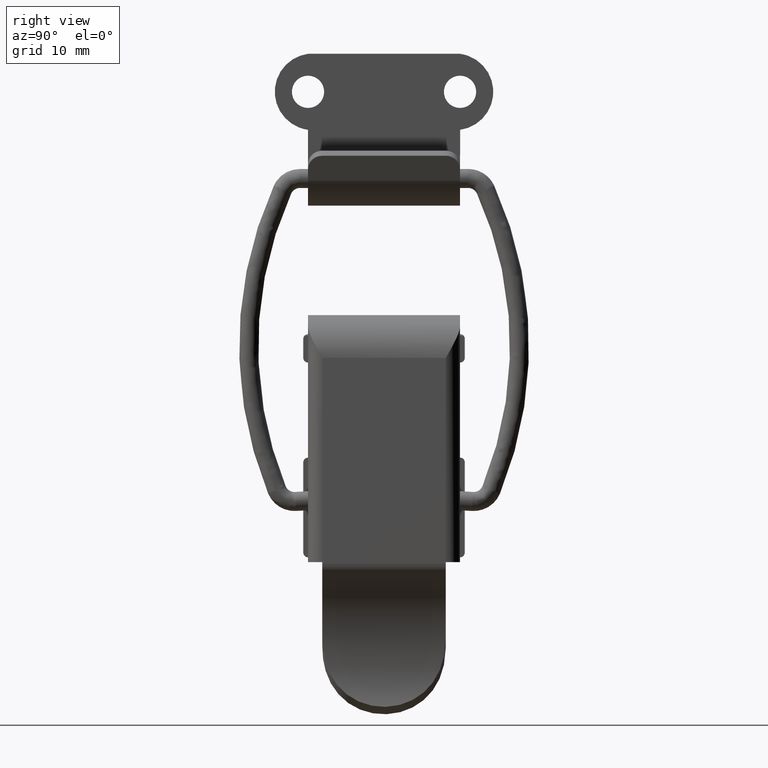
[diagram: clean part render]
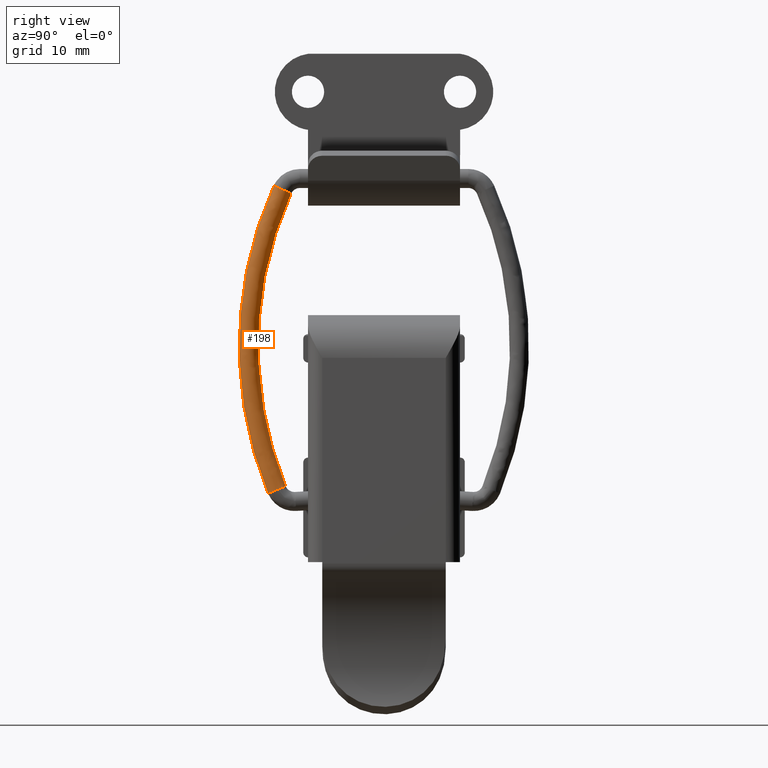
[diagram: same view with one face highlighted and labeled with its STEP entity id]
A machine part, right view. The second image highlights one B-rep face of the part: STEP entity #198.
In plain terms, the highlighted face is a freeform B-spline surface patch.
Its self-contained STEP definition (entity closure, byte-faithful):
#198=ADVANCED_FACE('',(#435),#434,.T.);
#434=( BOUNDED_SURFACE() B_SPLINE_SURFACE( 2,2,((#1752,#1753,#1754),(#1755,#1756,#1757),(#1758,#1759,#1760),(#1761,#1762,#1763),(#1764,#1765,#1766)), .UNSPECIFIED.,.F.,.F.,.F.) B_SPLINE_SURFACE_WITH_KNOTS((3,2,3),(3,3),(-3.14159265359E+00,-1.57079632679E+00,4.44089209850E-16),(0.00000000000E+00,9.00395545556E-01), .UNSPECIFIED. ) GEOMETRIC_REPRESENTATION_ITEM() RATIONAL_B_SPLINE_SURFACE(((1.00000000000E+00,9.00361060401E-01,1.00000000000E+00),(7.07106781187E-01,6.36651411326E-01,7.07106781187E-01),(1.00000000000E+00,9.00361060401E-01,1.00000000000E+00),(7.07106781187E-01,6.36651411326E-01,7.07106781187E-01),(1.00000000000E+00,9.00361060401E-01,1.00000000000E+00))) REPRESENTATION_ITEM('') SURFACE() );
#435=FACE_OUTER_BOUND('',#1767,.T.);
#1752=CARTESIAN_POINT('',(-9.12613839490E+00,1.00000000000E+00,1.74381463328E+01));
#1753=CARTESIAN_POINT('',(-1.75539772614E+01,1.00000000000E+00,6.15710908650E-01));
#1754=CARTESIAN_POINT('',(-9.60859266842E+00,1.00000000000E+00,-1.64398941885E+01));
#1755=CARTESIAN_POINT('',(-9.12613839490E+00,6.35518655930E-16,1.74381463328E+01));
#1756=CARTESIAN_POINT('',(-1.75539772614E+01,6.35518655930E-16,6.15710908650E-01));
#1757=CARTESIAN_POINT('',(-9.60859266842E+00,6.47112614191E-16,-1.64398941885E+01));
#1758=CARTESIAN_POINT('',(-1.00202119563E+01,6.66133814775E-16,1.78860664895E+01));
#1759=CARTESIAN_POINT('',(-1.86645301913E+01,6.66133814775E-16,6.31526197810E-01));
#1760=CARTESIAN_POINT('',(-1.05150586591E+01,6.66133814775E-16,-1.68621730156E+01));
#1761=CARTESIAN_POINT('',(-1.09142855178E+01,6.96748973621E-16,1.83339866461E+01));
#1762=CARTESIAN_POINT('',(-1.97750831212E+01,6.96748973621E-16,6.47341486970E-01));
#1763=CARTESIAN_POINT('',(-1.14215246497E+01,6.85155015359E-16,-1.72844518427E+01));
#1764=CARTESIAN_POINT('',(-1.09142855178E+01,1.00000000000E+00,1.83339866461E+01));
#1765=CARTESIAN_POINT('',(-1.97750831212E+01,1.00000000000E+00,6.47341486970E-01));
#1766=CARTESIAN_POINT('',(-1.14215246497E+01,1.00000000000E+00,-1.72844518427E+01));
#1767=EDGE_LOOP('',(#2478,#2479,#2480,#2481));
#2478=ORIENTED_EDGE('',*,*,#3146,.F.);
#2479=ORIENTED_EDGE('',*,*,#3147,.F.);
#2480=ORIENTED_EDGE('',*,*,#3148,.F.);
#2481=ORIENTED_EDGE('',*,*,#3149,.T.);
#3146=EDGE_CURVE('',#3637,#3638,#3639,.T.);
#3147=EDGE_CURVE('',#3645,#3637,#3646,.T.);
#3148=EDGE_CURVE('',#3652,#3645,#3653,.T.);
#3149=EDGE_CURVE('',#3652,#3638,#3659,.T.);
#3637=VERTEX_POINT('',#5870);
#3638=VERTEX_POINT('',#5871);
#3639=CIRCLE('',#5875,1.00000000000E+00);
#3645=VERTEX_POINT('',#5876);
#3646=(BOUNDED_CURVE() B_SPLINE_CURVE(2,(#5877,#5878,#5879),.UNSPECIFIED.,.F.,.F.) B_SPLINE_CURVE_WITH_KNOTS((3,3),(4.00773451854E-02,8.50764535508E-01),.UNSPECIFIED.) CURVE() GEOMETRIC_REPRESENTATION_ITEM() RATIONAL_B_SPLINE_CURVE((9.91524789906E-01,9.09799375902E-01,9.89621014420E-01)) REPRESENTATION_ITEM('') );
#3652=VERTEX_POINT('',#5880);
#3653=CIRCLE('',#5884,1.00000000000E+00);
#3659=(BOUNDED_CURVE() B_SPLINE_CURVE(2,(#5885,#5886,#5887),.UNSPECIFIED.,.F.,.F.) B_SPLINE_CURVE_WITH_KNOTS((3,3),(4.00773615527E-02,8.50764536394E-01),.UNSPECIFIED.) CURVE() GEOMETRIC_REPRESENTATION_ITEM() RATIONAL_B_SPLINE_CURVE((9.91524786606E-01,9.09799377424E-01,9.89621014595E-01)) REPRESENTATION_ITEM('') );
#5870=CARTESIAN_POINT('',(-1.03601002354E+01,1.00000000000E+00,-1.47195110664E+01));
#5871=CARTESIAN_POINT('',(-1.22116390022E+01,1.00000000000E+00,-1.54756884235E+01));
#5872=CARTESIAN_POINT('',(-1.12858696188E+01,1.00000000000E+00,-1.50975997449E+01));
#5873=DIRECTION('',(3.78088678521E-01,0.00000000000E+00,-9.25769383364E-01));
#5874=DIRECTION('',(-9.25769383364E-01,-1.22460635382E-16,-3.78088678521E-01));
#5875=AXIS2_PLACEMENT_3D('',#5872,#5873,#5874);
#5876=CARTESIAN_POINT('',(-9.77805705193E+00,1.00000000000E+00,1.60711113017E+01));
#5877=CARTESIAN_POINT('',(-9.77805704952E+00,1.00000000000E+00,1.60711113070E+01));
#5878=CARTESIAN_POINT('',(-1.66988022036E+01,1.00000000000E+00,8.01123536668E-01));
#5879=CARTESIAN_POINT('',(-1.03601002482E+01,1.00000000000E+00,-1.47195110352E+01));
#5880=CARTESIAN_POINT('',(-1.15996948339E+01,1.00000000000E+00,1.68967236752E+01));
#5881=CARTESIAN_POINT('',(-1.06888759429E+01,1.00000000000E+00,1.64839174885E+01));
#5882=DIRECTION('',(4.12806186768E-01,0.00000000000E+00,9.10818890980E-01));
#5883=DIRECTION('',(9.10818890980E-01,-1.22460635382E-16,-4.12806186768E-01));
#5884=AXIS2_PLACEMENT_3D('',#5881,#5882,#5883);
#5885=CARTESIAN_POINT('',(-1.15996951009E+01,1.00000000000E+00,1.68967230860E+01));
#5886=CARTESIAN_POINT('',(-1.88759754872E+01,1.00000000000E+00,8.42278838614E-01));
#5887=CARTESIAN_POINT('',(-1.22116390022E+01,1.00000000000E+00,-1.54756884235E+01));